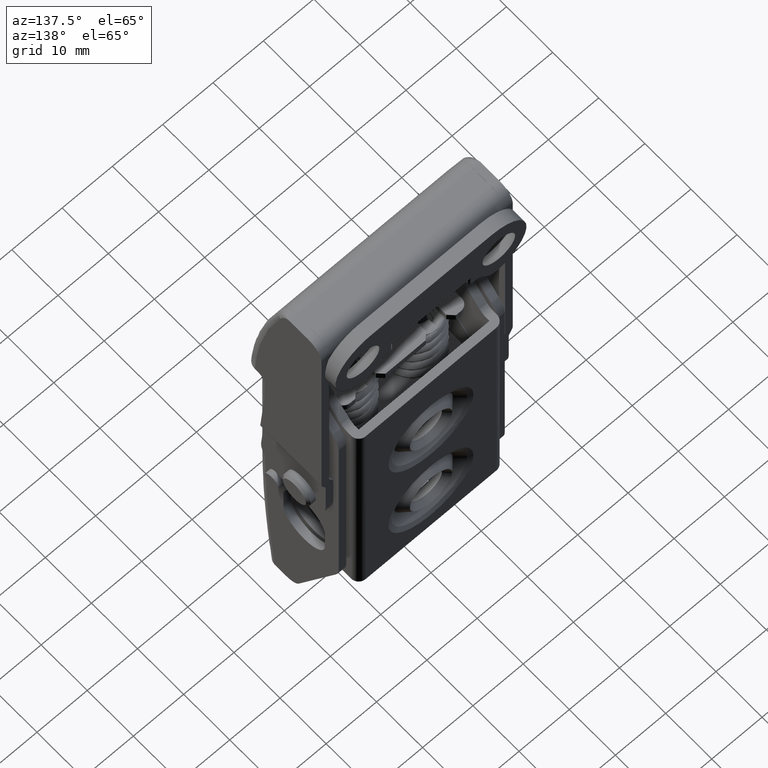
[diagram: clean part render]
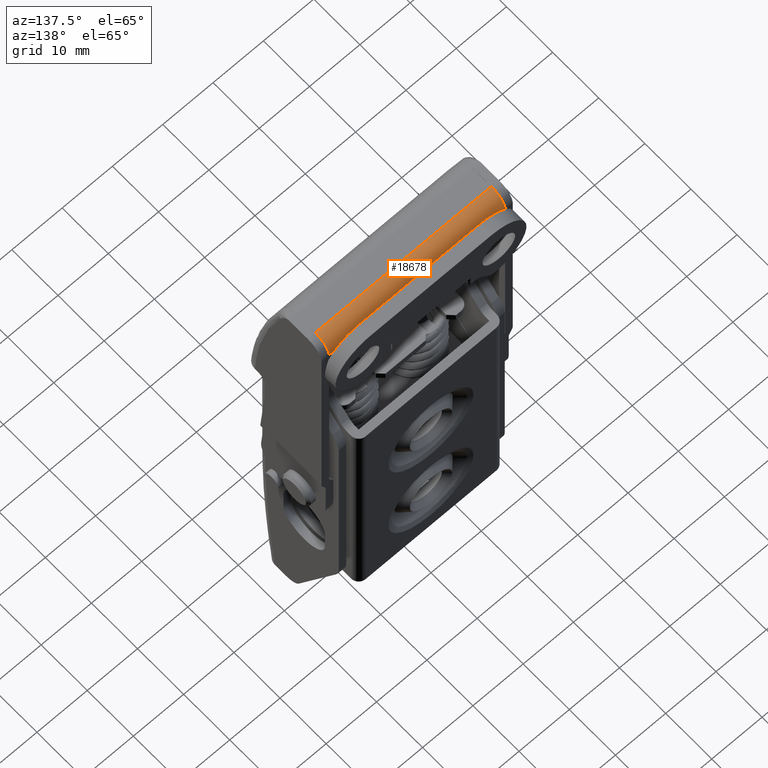
[diagram: same view with one face highlighted and labeled with its STEP entity id]
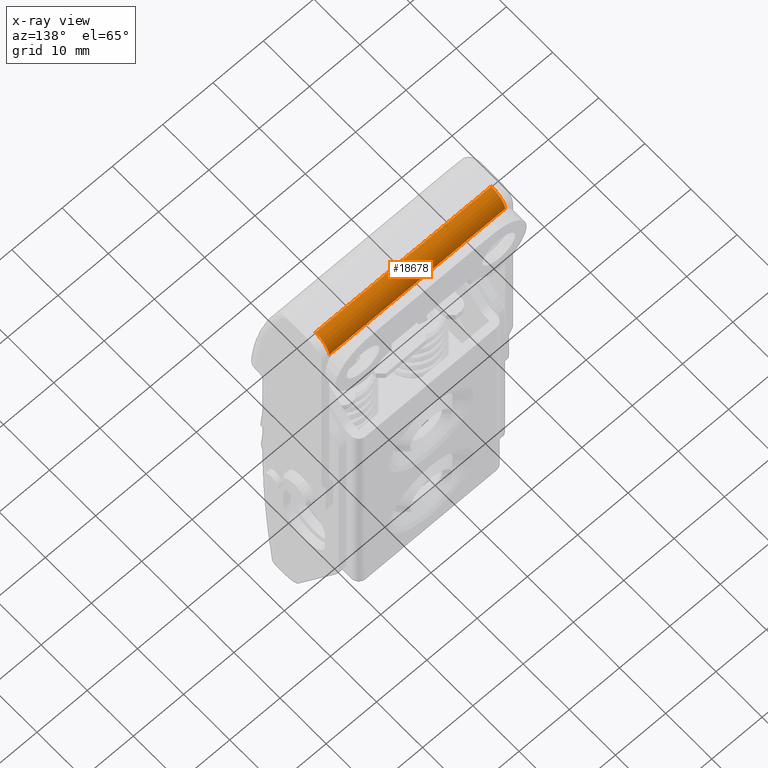
[diagram: x-ray of the same camera — body ghosted, the highlighted face saturated]
A machine part, auxiliary view. The second image highlights one B-rep face of the part: STEP entity #18678.
The next image is the same camera in x-ray: the body ghosted, the highlighted face saturated — about 0% of this face is hidden behind the body in this view.
In plain terms, the highlighted face is a freeform B-spline surface patch.
Its self-contained STEP definition (entity closure, byte-faithful):
#18597=CARTESIAN_POINT('',(-17.490000000096899,-6.000000000000091,49.499999999792003));
#18598=VERTEX_POINT('',#18597);
#18611=CARTESIAN_POINT('',(17.489999999992651,-6.000000000000091,49.499999999828802));
#18612=VERTEX_POINT('',#18611);
#18618=CARTESIAN_POINT('',(17.489999999992651,-6.000000000000091,49.499999999828802));
#18619=CARTESIAN_POINT('',(-17.490000000096899,-6.000000000000091,49.499999999792003));
#18620=QUASI_UNIFORM_CURVE('',1,(#18618,#18619),.UNSPECIFIED.,.F.,.U.);
#18621=EDGE_CURVE('',#18612,#18598,#18620,.T.);
#18626=CARTESIAN_POINT('',(18.364499999994941,-3.001028025073420,46.421469154902169));
#18627=CARTESIAN_POINT('',(-18.386362500099199,-3.001028025073420,46.421469154902169));
#18628=CARTESIAN_POINT('',(18.364499999994948,-2.915326646412122,49.694272765608140));
#18629=CARTESIAN_POINT('',(-18.386362500099199,-2.915326646412122,49.694272765608140));
#18630=CARTESIAN_POINT('',(18.364499999994941,-6.183145618604655,49.494404395091387));
#18631=CARTESIAN_POINT('',(-18.386362500099199,-6.183145618604655,49.494404395091387));
#18639=(BOUNDED_SURFACE()B_SPLINE_SURFACE(1,2,((#18626,#18628,#18630),(#18627,#18629,#18631)),.UNSPECIFIED.,.F.,.F.,.U.)B_SPLINE_SURFACE_WITH_KNOTS((2,2),(3,3),(0.0,36.750862500094136),(0.0,5.280126370701997),.UNSPECIFIED.)GEOMETRIC_REPRESENTATION_ITEM()RATIONAL_B_SPLINE_SURFACE(((1.0,0.675590207615660,1.0),(1.0,0.675590207615660,1.0)))REPRESENTATION_ITEM('')SURFACE());
#18640=CARTESIAN_POINT('',(-17.490000000090600,-3.000000000008310,46.499999999825803));
#18641=VERTEX_POINT('',#18640);
#18642=CARTESIAN_POINT('',(-17.490000000096899,-6.000000000000091,49.499999999792003));
#18643=CARTESIAN_POINT('',(-17.490000000096920,-3.000000000000089,49.499999999825825));
#18644=CARTESIAN_POINT('',(-17.490000000090600,-3.000000000000090,46.499999999825803));
#18652=(BOUNDED_CURVE()B_SPLINE_CURVE(2,(#18642,#18643,#18644),.UNSPECIFIED.,.F.,.U.)CURVE()GEOMETRIC_REPRESENTATION_ITEM()QUASI_UNIFORM_CURVE()RATIONAL_B_SPLINE_CURVE((1.0,0.707106781186548,1.0))REPRESENTATION_ITEM(''));
#18653=EDGE_CURVE('',#18598,#18641,#18652,.T.);
#18654=ORIENTED_EDGE('',*,*,#18653,.F.);
#18655=ORIENTED_EDGE('',*,*,#18621,.F.);
#18656=CARTESIAN_POINT('',(17.489999999992701,-3.000000000008310,46.499999999825803));
#18657=VERTEX_POINT('',#18656);
#18658=CARTESIAN_POINT('',(17.489999999992701,-3.000000000008310,46.499999999825803));
#18659=CARTESIAN_POINT('',(17.489999999992705,-3.000000000000089,49.499999999825825));
#18660=CARTESIAN_POINT('',(17.489999999992701,-6.000000000000091,49.499999999825803));
#18668=(BOUNDED_CURVE()B_SPLINE_CURVE(2,(#18658,#18659,#18660),.UNSPECIFIED.,.F.,.U.)CURVE()GEOMETRIC_REPRESENTATION_ITEM()QUASI_UNIFORM_CURVE()RATIONAL_B_SPLINE_CURVE((1.0,0.707106781186548,1.0))REPRESENTATION_ITEM(''));
#18669=EDGE_CURVE('',#18657,#18612,#18668,.T.);
#18670=ORIENTED_EDGE('',*,*,#18669,.F.);
#18671=CARTESIAN_POINT('',(17.489999999992701,-3.000000000008310,46.499999999825803));
#18672=CARTESIAN_POINT('',(-17.490000000090600,-3.000000000008310,46.499999999825803));
#18673=QUASI_UNIFORM_CURVE('',1,(#18671,#18672),.UNSPECIFIED.,.F.,.U.);
#18674=EDGE_CURVE('',#18657,#18641,#18673,.T.);
#18675=ORIENTED_EDGE('',*,*,#18674,.T.);
#18676=EDGE_LOOP('',(#18654,#18655,#18670,#18675));
#18677=FACE_OUTER_BOUND('',#18676,.T.);
#18678=ADVANCED_FACE('',(#18677),#18639,.T.);